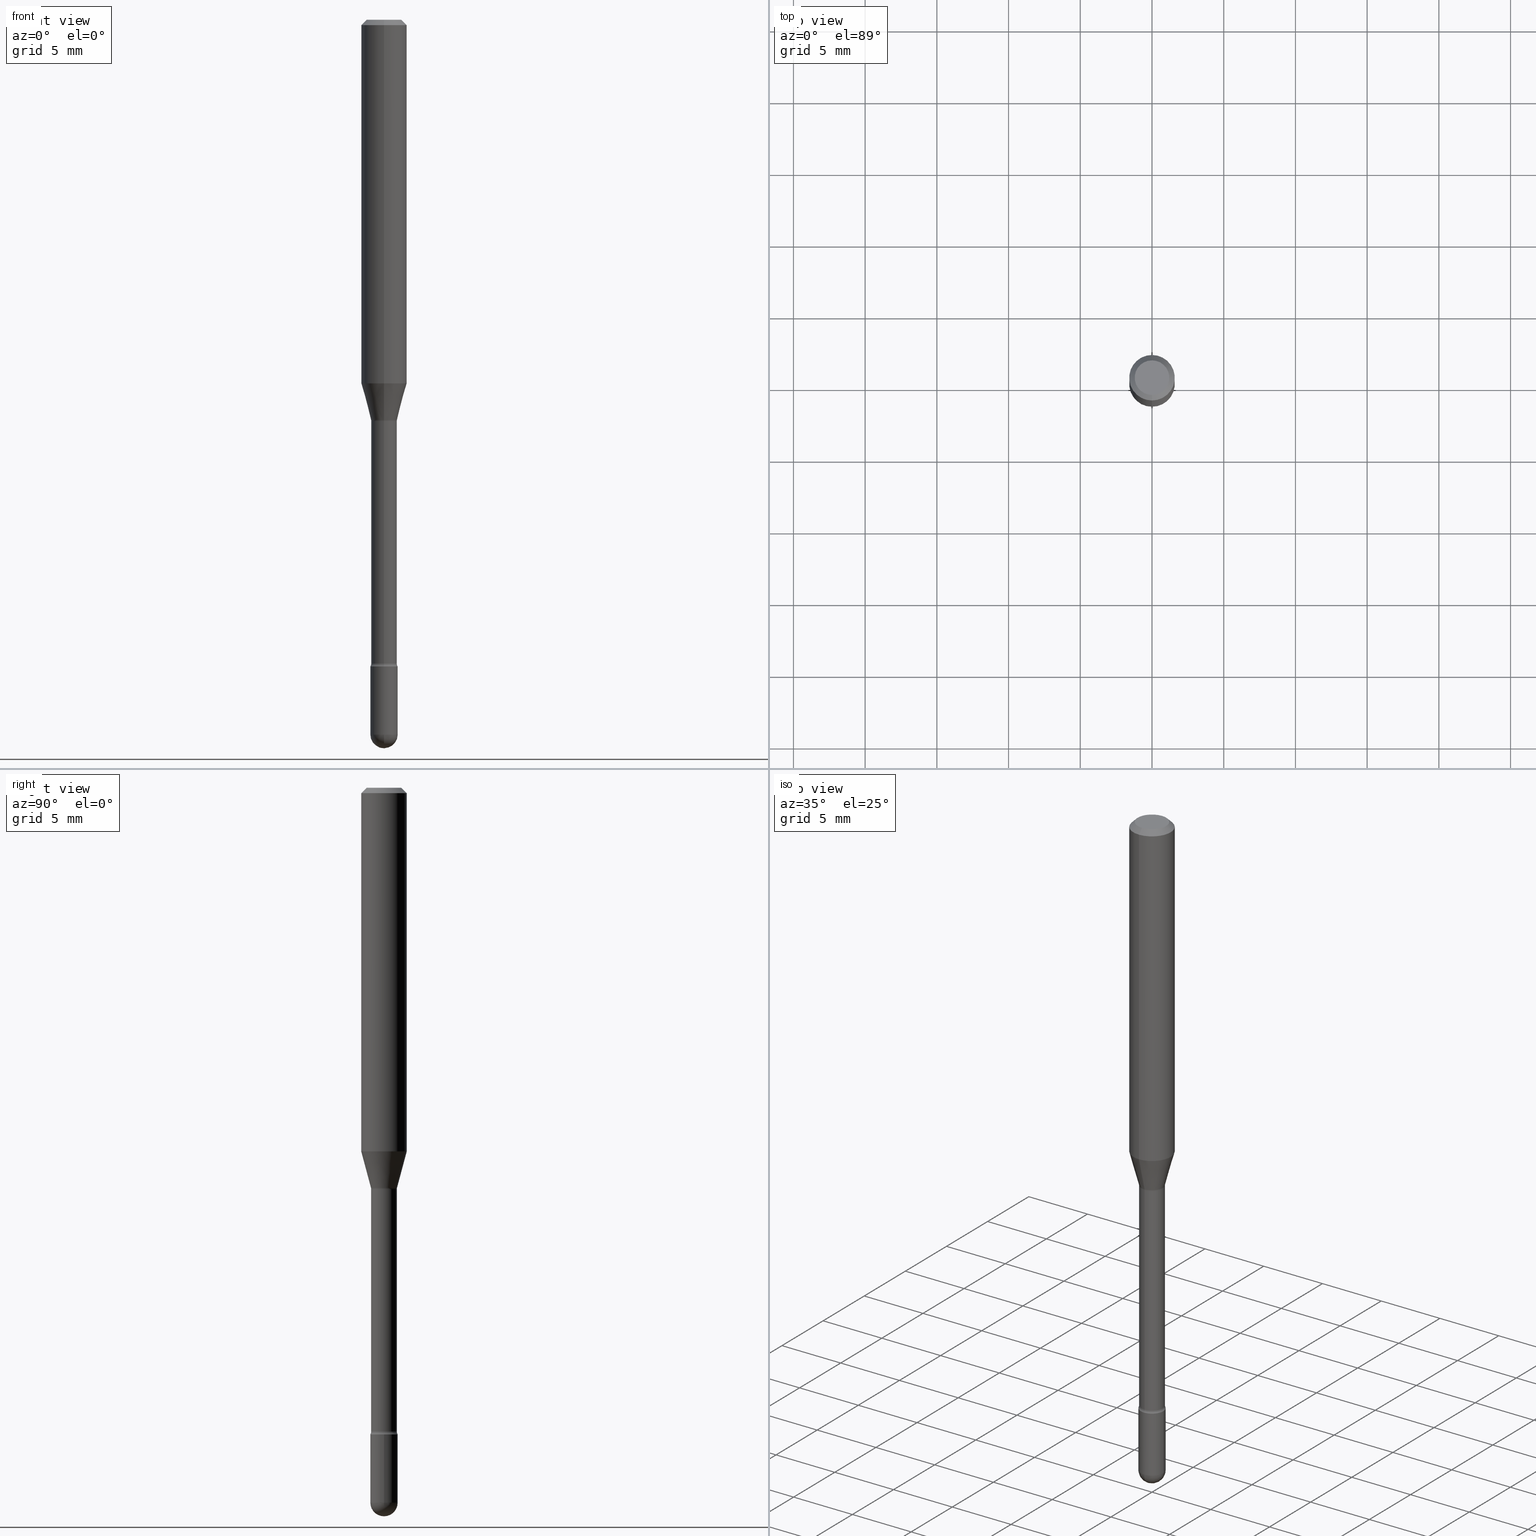
[diagram: canonical four-view strip — front | top / right | iso, engineering-drawing reading convention]
A machine part, canonical four-view strip (front | top / right | iso — engineering-drawing reading convention). The complete STEP part file that produces these views, byte-faithful:
ISO-10303-21;
HEADER;
FILE_DESCRIPTION (( 'STEP AP203' ),
    '1' );
FILE_NAME ('03740.STEP',
    '2024-04-09T20:18:31',
    ( '' ),
    ( '' ),
    'SwSTEP 2.0',
    'SolidWorks 2023',
    '' );
FILE_SCHEMA (( 'CONFIG_CONTROL_DESIGN' ));
ENDSEC;

DATA;
#1 = CALENDAR_DATE ( 2024, 9, 4 ) ;
#2 = DIRECTION ( 'NONE',  ( -2.445449487878579082E-29, 3.491509003757665551E-15, 1.000000000000000000 ) ) ;
#3 = CARTESIAN_POINT ( 'NONE',  ( 4.799232532138329338E-29, -6.852032127479672087E-15, -1.962499999999999689 ) ) ;
#4 = EDGE_CURVE ( 'NONE', #212, #491, #198, .T. ) ;
#5 = CARTESIAN_POINT ( 'NONE',  ( 2.694844967945245181E-29, -3.847524406305537036E-15, -1.101974787463810834 ) ) ;
#6 = CIRCLE ( 'NONE', #47, 0.03749999999999999861 ) ;
#7 = CONICAL_SURFACE ( 'NONE', #415, 0.03576111260566397498, 0.2617993877991499629 ) ;
#8 = DIRECTION ( 'NONE',  ( -2.445468806185136597E-29, 3.491481338843145583E-15, 1.000000000000000000 ) ) ;
#9 = ORIENTED_EDGE ( 'NONE', *, *, #286, .F. ) ;
#10 = ORIENTED_EDGE ( 'NONE', *, *, #89, .T. ) ;
#11 = DIRECTION ( 'NONE',  ( -2.445449487878579082E-29, 3.491509003757665551E-15, 1.000000000000000000 ) ) ;
#12 = CIRCLE ( 'NONE', #61, 0.03524999999999999661 ) ;
#13 = DIRECTION ( 'NONE',  ( 1.000000000000000000, -6.982962677686268288E-15, 0.000000000000000000 ) ) ;
#14 = AXIS2_PLACEMENT_3D ( 'NONE', #326, #154, #103 ) ;
#15 = DIRECTION ( 'NONE',  ( -6.982962677686265133E-15, -1.000000000000000000, 3.819579138641765120E-15 ) ) ;
#16 = CARTESIAN_POINT ( 'NONE',  ( 4.321349534178693769E-29, -6.169839484215937915E-15, -1.767098259685360606 ) ) ;
#17 = CARTESIAN_POINT ( 'NONE',  ( 2.694844967945245181E-29, -3.847524406305537036E-15, -1.101974787463810834 ) ) ;
#18 = EDGE_CURVE ( 'NONE', #374, #327, #466, .T. ) ;
#19 = VERTEX_POINT ( 'NONE', #195 ) ;
#20 = FACE_OUTER_BOUND ( 'NONE', #545, .T. ) ;
#21 = CARTESIAN_POINT ( 'NONE',  ( 0.000000000000000000, 0.000000000000000000, 0.000000000000000000 ) ) ;
#22 = EDGE_CURVE ( 'NONE', #264, #332, #346, .T. ) ;
#23 = CARTESIAN_POINT ( 'NONE',  ( 2.664535259100808486E-16, 0.03749999999999379524, -1.775000000000000133 ) ) ;
#24 = AXIS2_PLACEMENT_3D ( 'NONE', #402, #11, #188 ) ;
#25 = CARTESIAN_POINT ( 'NONE',  ( -2.497185146378605472E-16, -0.03576111260566780525, -1.098092501787272912 ) ) ;
#26 = DIRECTION ( 'NONE',  ( -4.851104656540964275E-15, -0.7071067811865500152, -0.7071067811865450192 ) ) ;
#27 = ORIENTED_EDGE ( 'NONE', *, *, #123, .F. ) ;
#28 = AXIS2_PLACEMENT_3D ( 'NONE', #231, #92, #376 ) ;
#29 = LOCAL_TIME ( 16, 18, 31.00000000000000000, #426 ) ;
#30 = EDGE_CURVE ( 'NONE', #114, #491, #12, .T. ) ;
#31 = PERSON_AND_ORGANIZATION_ROLE ( 'design_owner' ) ;
#32 = PERSON_AND_ORGANIZATION ( #78, #234 ) ;
#33 = EDGE_LOOP ( 'NONE', ( #522, #120, #362, #144, #116 ) ) ;
#34 = DIRECTION ( 'NONE',  ( -2.445468806185136597E-29, 3.491481338843145583E-15, 1.000000000000000000 ) ) ;
#35 = DIRECTION ( 'NONE',  ( -2.445449487878579082E-29, 3.491509003757665551E-15, 1.000000000000000000 ) ) ;
#36 = PERSON_AND_ORGANIZATION_ROLE ( 'classification_officer' ) ;
#37 = AXIS2_PLACEMENT_3D ( 'NONE', #291, #366, #535 ) ;
#38 = AXIS2_PLACEMENT_3D ( 'NONE', #511, #111, #65 ) ;
#39 = DATE_AND_TIME ( #1, #71 ) ;
#40 = VERTEX_POINT ( 'NONE', #142 ) ;
#41 = EDGE_CURVE ( 'NONE', #476, #553, #101, .T. ) ;
#42 = DIRECTION ( 'NONE',  ( -2.445449487878579082E-29, 3.491509003757665551E-15, 1.000000000000000000 ) ) ;
#43 = EDGE_CURVE ( 'NONE', #40, #469, #308, .T. ) ;
#44 = ORIENTED_EDGE ( 'NONE', *, *, #18, .T. ) ;
#45 = EDGE_CURVE ( 'NONE', #332, #460, #136, .T. ) ;
#46 = DIRECTION ( 'NONE',  ( 1.000000000000000000, -6.982962677686265922E-15, 4.876176775795935793E-29 ) ) ;
#47 = AXIS2_PLACEMENT_3D ( 'NONE', #520, #34, #73 ) ;
#48 = ORIENTED_EDGE ( 'NONE', *, *, #30, .F. ) ;
#49 = CARTESIAN_POINT ( 'NONE',  ( 2.618611004132830729E-16, 0.03749999999999317074, -1.962499999999999689 ) ) ;
#50 = DIRECTION ( 'NONE',  ( -6.982962677686265922E-15, -1.000000000000000000, 0.000000000000000000 ) ) ;
#51 = ORIENTED_EDGE ( 'NONE', *, *, #22, .F. ) ;
#52 = CARTESIAN_POINT ( 'NONE',  ( 3.840629472727447874E-16, 0.04749999999999999362, -2.485923956665947374E-16 ) ) ;
#53 = CC_DESIGN_SECURITY_CLASSIFICATION ( #180, ( #298 ) ) ;
#54 = EDGE_CURVE ( 'NONE', #368, #87, #81, .T. ) ;
#55 = FACE_OUTER_BOUND ( 'NONE', #336, .T. ) ;
#56 = ORIENTED_EDGE ( 'NONE', *, *, #484, .F. ) ;
#57 = DIRECTION ( 'NONE',  ( -1.000000000000000000, 6.982962677686265922E-15, -4.883557194083112901E-29 ) ) ;
#58 = ORIENTED_EDGE ( 'NONE', *, *, #501, .F. ) ;
#59 = DIRECTION ( 'NONE',  ( -1.807323732225328167E-15, -0.2588190451025179084, 0.9659258262890690894 ) ) ;
#60 = CONICAL_SURFACE ( 'NONE', #209, 0.06250000000000000000, 0.7853981633974483900 ) ;
#61 = AXIS2_PLACEMENT_3D ( 'NONE', #525, #184, #470 ) ;
#62 = CIRCLE ( 'NONE', #407, 0.03749999999999999861 ) ;
#63 = SECURITY_CLASSIFICATION_LEVEL ( 'unclassified' ) ;
#64 = LINE ( 'NONE', #515, #306 ) ;
#65 = DIRECTION ( 'NONE',  ( 1.000000000000000000, 0.000000000000000000, 0.000000000000000000 ) ) ;
#66 = DIRECTION ( 'NONE',  ( -6.982962677686265922E-15, -1.000000000000000000, 3.491509003757665551E-15 ) ) ;
#67 = ORIENTED_EDGE ( 'NONE', *, *, #18, .F. ) ;
#68 = ORIENTED_EDGE ( 'NONE', *, *, #526, .T. ) ;
#69 = APPROVAL_ROLE ( '' ) ;
#70 = CIRCLE ( 'NONE', #393, 0.06250000000000000000 ) ;
#71 = LOCAL_TIME ( 16, 18, 31.00000000000000000, #506 ) ;
#72 = DIRECTION ( 'NONE',  ( -6.982962677686265922E-15, -1.000000000000000000, 3.491509003757665551E-15 ) ) ;
#73 = DIRECTION ( 'NONE',  ( 1.000000000000000000, -6.982962677686268288E-15, 0.000000000000000000 ) ) ;
#74 = LINE ( 'NONE', #258, #324 ) ;
#75 = APPLICATION_PROTOCOL_DEFINITION ( 'international standard', 'config_control_design', 1994, #304 ) ;
#76 = ORIENTED_EDGE ( 'NONE', *, *, #98, .F. ) ;
#77 = DIRECTION ( 'NONE',  ( 1.000000000000000000, -6.982962677686268288E-15, 0.000000000000000000 ) ) ;
#78 = PERSON ( 'UNSPECIFIED', 'UNSPECIFIED', 'UNSPECIFIED', ('UNSPECIFIED'), ('UNSPECIFIED'), ('UNSPECIFIED') ) ;
#79 = CARTESIAN_POINT ( 'NONE',  ( 2.618611004132783890E-16, 0.03749999999999380218, -1.775000000000000133 ) ) ;
#80 = ADVANCED_FACE ( 'NONE', ( #358 ), #541, .T. ) ;
#81 = CIRCLE ( 'NONE', #285, 0.03750000000000004025 ) ;
#82 = TOROIDAL_SURFACE ( 'NONE', #252, 0.05025000000000007933, 0.01499999999999999077 ) ;
#83 = DIRECTION ( 'NONE',  ( -6.982962677686265922E-15, -1.000000000000000000, 4.370956789862821150E-15 ) ) ;
#84 = COORDINATED_UNIVERSAL_TIME_OFFSET ( 5, 0, .BEHIND. ) ;
#85 = ADVANCED_FACE ( 'NONE', ( #318 ), #191, .F. ) ;
#86 = ADVANCED_FACE ( 'NONE', ( #353 ), #531, .T. ) ;
#87 = VERTEX_POINT ( 'NONE', #194 ) ;
#88 = PRODUCT_DEFINITION ( 'UNKNOWN', '', #298, #299 ) ;
#89 = EDGE_CURVE ( 'NONE', #327, #114, #540, .T. ) ;
#90 = ORIENTED_EDGE ( 'NONE', *, *, #399, .F. ) ;
#91 = AXIS2_PLACEMENT_3D ( 'NONE', #140, #311, #155 ) ;
#92 = DIRECTION ( 'NONE',  ( -2.445449487878579082E-29, 3.491509003757665551E-15, 1.000000000000000000 ) ) ;
#93 = APPROVAL_PERSON_ORGANIZATION ( #174, #401, #183 ) ;
#94 = ORIENTED_EDGE ( 'NONE', *, *, #30, .T. ) ;
#95 = EDGE_CURVE ( 'NONE', #469, #19, #222, .T. ) ;
#96 = DIRECTION ( 'NONE',  ( -2.445449487878579082E-29, 3.491509003757665551E-15, 1.000000000000000000 ) ) ;
#97 = DIRECTION ( 'NONE',  ( -2.445449487878579082E-29, 3.491509003757665551E-15, 1.000000000000000000 ) ) ;
#98 = EDGE_CURVE ( 'NONE', #542, #146, #6, .T. ) ;
#99 = CARTESIAN_POINT ( 'NONE',  ( 2.504663143554787774E-16, 0.03524999999999615247, -1.101974787463810834 ) ) ;
#100 = CYLINDRICAL_SURFACE ( 'NONE', #91, 0.03749999999999999861 ) ;
#101 = CIRCLE ( 'NONE', #316, 0.04749999999999999362 ) ;
#102 = APPROVAL ( #256, 'UNSPECIFIED' ) ;
#103 = DIRECTION ( 'NONE',  ( 7.105427357600997914E-15, 1.000000000000000000, 0.000000000000000000 ) ) ;
#104 = CIRCLE ( 'NONE', #14, 0.01499999999999999424 ) ;
#105 = DIRECTION ( 'NONE',  ( 7.105427357600997914E-15, 1.000000000000000000, 0.000000000000000000 ) ) ;
#106 = CARTESIAN_POINT ( 'NONE',  ( 4.440892098500869722E-16, 0.06249999999999652361, -0.9983016154937485176 ) ) ;
#107 = EDGE_LOOP ( 'NONE', ( #90, #202, #115, #330 ) ) ;
#108 = DIRECTION ( 'NONE',  ( 1.000000000000000000, -6.982962677686268288E-15, 0.000000000000000000 ) ) ;
#109 = CARTESIAN_POINT ( 'NONE',  ( 3.570477247194771860E-16, 0.05024999999999614497, -1.101974787463811056 ) ) ;
#110 = DIRECTION ( 'NONE',  ( -2.445449487878579082E-29, 3.491509003757665551E-15, 1.000000000000000000 ) ) ;
#111 = DIRECTION ( 'NONE',  ( 0.000000000000000000, 0.000000000000000000, 1.000000000000000000 ) ) ;
#112 =( NAMED_UNIT ( * ) SI_UNIT ( $, .STERADIAN. ) SOLID_ANGLE_UNIT ( ) );
#113 = DIRECTION ( 'NONE',  ( -2.445449487878579082E-29, 3.491509003757665551E-15, 1.000000000000000000 ) ) ;
#114 = VERTEX_POINT ( 'NONE', #254 ) ;
#115 = ORIENTED_EDGE ( 'NONE', *, *, #290, .T. ) ;
#116 = ORIENTED_EDGE ( 'NONE', *, *, #98, .T. ) ;
#117 = ADVANCED_FACE ( 'NONE', ( #168 ), #219, .F. ) ;
#118 = CARTESIAN_POINT ( 'NONE',  ( 3.668174231817888906E-31, -5.237263505636527144E-17, -0.01500000000000008271 ) ) ;
#119 = MECHANICAL_CONTEXT ( 'NONE', #126, 'mechanical' ) ;
#120 = ORIENTED_EDGE ( 'NONE', *, *, #43, .T. ) ;
#121 = CC_DESIGN_PERSON_AND_ORGANIZATION_ASSIGNMENT ( #367, #555, ( #298 ) ) ;
#122 = AXIS2_PLACEMENT_3D ( 'NONE', #79, #561, #172 ) ;
#123 = EDGE_CURVE ( 'NONE', #264, #462, #463, .T. ) ;
#124 = DATE_AND_TIME ( #337, #29 ) ;
#125 = ORIENTED_EDGE ( 'NONE', *, *, #43, .F. ) ;
#126 = APPLICATION_CONTEXT ( 'configuration controlled 3d designs of mechanical parts and assemblies' ) ;
#127 = CARTESIAN_POINT ( 'NONE',  ( 3.490935988483243741E-16, 0.03576111260566013778, -1.098092501787273356 ) ) ;
#128 = CARTESIAN_POINT ( 'NONE',  ( 4.340707130978617347E-29, -6.197379376446583794E-15, -1.775000000000000133 ) ) ;
#129 = CARTESIAN_POINT ( 'NONE',  ( 2.584599201327800595E-16, 0.03524999999999392508, -1.767098259685360606 ) ) ;
#130 = ADVANCED_FACE ( 'NONE', ( #263 ), #224, .T. ) ;
#131 = CARTESIAN_POINT ( 'NONE',  ( 2.441296174357545252E-29, -3.485579078962245490E-15, -0.9983016154937482955 ) ) ;
#132 = CARTESIAN_POINT ( 'NONE',  ( -3.508938745536922406E-16, -0.05025000000000625494, -1.767098259685360384 ) ) ;
#133 = ORIENTED_EDGE ( 'NONE', *, *, #253, .T. ) ;
#134 = ORIENTED_EDGE ( 'NONE', *, *, #190, .F. ) ;
#135 = DIRECTION ( 'NONE',  ( 1.000000000000000000, -7.105427357601001070E-15, 4.926315847339572402E-29 ) ) ;
#136 = CIRCLE ( 'NONE', #24, 0.06250000000000000000 ) ;
#137 = DIRECTION ( 'NONE',  ( -6.982962677686266711E-15, -1.000000000000000000, 3.491509003757665945E-15 ) ) ;
#138 = DIRECTION ( 'NONE',  ( -2.445449487878579082E-29, 3.491509003757665551E-15, 1.000000000000000000 ) ) ;
#139 = CARTESIAN_POINT ( 'NONE',  ( -4.364351673553671654E-16, -0.06250000000000346945, -0.9983016154937480735 ) ) ;
#140 = CARTESIAN_POINT ( 'NONE',  ( 0.000000000000000000, 0.000000000000000000, 0.000000000000000000 ) ) ;
#141 = CARTESIAN_POINT ( 'NONE',  ( 3.668174231817888906E-31, -5.237263505636527144E-17, -0.01500000000000008271 ) ) ;
#142 = CARTESIAN_POINT ( 'NONE',  ( -0.03749999999999999861, -6.258252226053091317E-15, -1.962499999999999689 ) ) ;
#143 = DIRECTION ( 'NONE',  ( 2.445449487878579082E-29, -3.491509003757665551E-15, -1.000000000000000000 ) ) ;
#144 = ORIENTED_EDGE ( 'NONE', *, *, #247, .F. ) ;
#145 = ADVANCED_FACE ( 'NONE', ( #528 ), #60, .T. ) ;
#146 = VERTEX_POINT ( 'NONE', #49 ) ;
#147 = AXIS2_PLACEMENT_3D ( 'NONE', #310, #434, #395 ) ;
#148 = CIRCLE ( 'NONE', #474, 0.03525000000000008682 ) ;
#149 = AXIS2_PLACEMENT_3D ( 'NONE', #158, #503, #108 ) ;
#150 = DIRECTION ( 'NONE',  ( 4.937700262164548042E-15, 0.7071067811865451302, -0.7071067811865499042 ) ) ;
#151 = ORIENTED_EDGE ( 'NONE', *, *, #380, .F. ) ;
#152 = CARTESIAN_POINT ( 'NONE',  ( 4.440892098500871695E-16, 0.06249999999999995837, -0.01500000000000030129 ) ) ;
#153 = CARTESIAN_POINT ( 'NONE',  ( 4.321383671524591751E-29, -6.169790597593636121E-15, -1.767098259685360606 ) ) ;
#154 = DIRECTION ( 'NONE',  ( 1.000000000000000000, -7.105427357601001070E-15, 4.926315847339572402E-29 ) ) ;
#155 = DIRECTION ( 'NONE',  ( 1.000000000000000000, -6.982962677686266711E-15, 4.876176775795935793E-29 ) ) ;
#156 = CIRCLE ( 'NONE', #147, 0.03749999999999999861 ) ;
#157 = CARTESIAN_POINT ( 'NONE',  ( -1.169113584055446105E-44, 1.669184350826100908E-30, 4.780733988912460139E-16 ) ) ;
#158 = CARTESIAN_POINT ( 'NONE',  ( 4.799232532138329338E-29, -6.852032127479672087E-15, -1.962499999999999689 ) ) ;
#159 = ORIENTED_EDGE ( 'NONE', *, *, #95, .F. ) ;
#160 = DIRECTION ( 'NONE',  ( 6.982962677686265922E-15, 1.000000000000000000, -3.491509003757665551E-15 ) ) ;
#161 = DIRECTION ( 'NONE',  ( -2.445449487878579082E-29, 3.491509003757665551E-15, 1.000000000000000000 ) ) ;
#162 = CIRCLE ( 'NONE', #549, 0.03524999999999999661 ) ;
#163 = VECTOR ( 'NONE', #96, 39.37007874015748143 ) ;
#164 = ADVANCED_FACE ( 'NONE', ( #396 ), #439, .T. ) ;
#165 = COORDINATED_UNIVERSAL_TIME_OFFSET ( 5, 0, .BEHIND. ) ;
#166 = ORIENTED_EDGE ( 'NONE', *, *, #504, .T. ) ;
#167 = CC_DESIGN_PERSON_AND_ORGANIZATION_ASSIGNMENT ( #464, #169, ( #88 ) ) ;
#168 = FACE_OUTER_BOUND ( 'NONE', #489, .T. ) ;
#169 = PERSON_AND_ORGANIZATION_ROLE ( 'creator' ) ;
#170 = AXIS2_PLACEMENT_3D ( 'NONE', #131, #471, #83 ) ;
#171 = AXIS2_PLACEMENT_3D ( 'NONE', #236, #351, #200 ) ;
#172 = DIRECTION ( 'NONE',  ( -6.982962677686265922E-15, -1.000000000000000000, 3.491509003757665551E-15 ) ) ;
#173 = EDGE_LOOP ( 'NONE', ( #9, #44, #354, #347 ) ) ;
#174 = PERSON_AND_ORGANIZATION ( #78, #234 ) ;
#175 = CARTESIAN_POINT ( 'NONE',  ( 2.441296174357545252E-29, -3.485579078962245490E-15, -0.9983016154937482955 ) ) ;
#176 = DIRECTION ( 'NONE',  ( -2.445449487878579082E-29, 3.491509003757665551E-15, 1.000000000000000000 ) ) ;
#177 = CARTESIAN_POINT ( 'NONE',  ( -4.364351673553916201E-16, -0.06250000000000000000, 6.962927116261001108E-16 ) ) ;
#178 = AXIS2_PLACEMENT_3D ( 'NONE', #118, #42, #391 ) ;
#179 = UNCERTAINTY_MEASURE_WITH_UNIT (LENGTH_MEASURE( 1.000000000000000082E-05 ), #246, 'distance_accuracy_value', 'NONE');
#180 = SECURITY_CLASSIFICATION ( '', '', #63 ) ;
#181 = EDGE_LOOP ( 'NONE', ( #403, #381, #216, #220 ) ) ;
#182 = VECTOR ( 'NONE', #235, 39.37007874015748143 ) ;
#183 = APPROVAL_ROLE ( '' ) ;
#184 = DIRECTION ( 'NONE',  ( -2.445449487878579082E-29, 3.491509003757665551E-15, 1.000000000000000000 ) ) ;
#185 = ADVANCED_BREP_SHAPE_REPRESENTATION ( '03740', ( #440, #437, #38 ), #261 ) ;
#186 = CALENDAR_DATE ( 2024, 9, 4 ) ;
#187 = ORIENTED_EDGE ( 'NONE', *, *, #501, .T. ) ;
#188 = DIRECTION ( 'NONE',  ( -6.982962677686265922E-15, -1.000000000000000000, 3.483106191921935554E-15 ) ) ;
#189 = ORIENTED_EDGE ( 'NONE', *, *, #247, .T. ) ;
#190 = EDGE_CURVE ( 'NONE', #327, #374, #382, .T. ) ;
#191 = TOROIDAL_SURFACE ( 'NONE', #315, 0.05024999999999999606, 0.01499999999999999077 ) ;
#192 = CC_DESIGN_APPROVAL ( #425, ( #298 ) ) ;
#193 = FACE_OUTER_BOUND ( 'NONE', #313, .T. ) ;
#194 = CARTESIAN_POINT ( 'NONE',  ( -2.664535259099897351E-16, -0.03750000000000687506, -1.962499999999999689 ) ) ;
#195 = CARTESIAN_POINT ( 'NONE',  ( 0.03749999999999999861, -6.459240476859818795E-15, -1.775000000000000133 ) ) ;
#196 = PLANE ( 'NONE',  #488 ) ;
#197 = DIRECTION ( 'NONE',  ( -2.445449487878579082E-29, 3.491509003757665551E-15, 1.000000000000000000 ) ) ;
#198 = LINE ( 'NONE', #502, #182 ) ;
#199 = CARTESIAN_POINT ( 'NONE',  ( 3.316907271900976096E-16, 0.04749999999999999362, 3.181716277308108070E-17 ) ) ;
#200 = DIRECTION ( 'NONE',  ( -6.982962677686266711E-15, -1.000000000000000000, 3.491509003757667523E-15 ) ) ;
#201 = CONICAL_SURFACE ( 'NONE', #345, 0.06250000000000000000, 0.7853981633974483900 ) ;
#202 = ORIENTED_EDGE ( 'NONE', *, *, #526, .F. ) ;
#203 = DIRECTION ( 'NONE',  ( 1.000000000000000000, -6.982962677686268288E-15, 0.000000000000000000 ) ) ;
#204 = EDGE_CURVE ( 'NONE', #368, #146, #344, .T. ) ;
#205 = ORIENTED_EDGE ( 'NONE', *, *, #204, .F. ) ;
#206 = PERSON_AND_ORGANIZATION ( #78, #234 ) ;
#207 = EDGE_CURVE ( 'NONE', #491, #114, #162, .T. ) ;
#208 = APPROVAL_DATE_TIME ( #419, #102 ) ;
#209 = AXIS2_PLACEMENT_3D ( 'NONE', #141, #143, #268 ) ;
#210 = ORIENTED_EDGE ( 'NONE', *, *, #45, .F. ) ;
#211 = LENGTH_MEASURE_WITH_UNIT ( LENGTH_MEASURE( 0.02539999999999999897 ), #461 );
#212 = VERTEX_POINT ( 'NONE', #129 ) ;
#213 = PRODUCT ( '03740', '03740', '', ( #119 ) ) ;
#214 = LINE ( 'NONE', #377, #507 ) ;
#215 = DIRECTION ( 'NONE',  ( -6.982962677686266711E-15, -1.000000000000000000, 0.000000000000000000 ) ) ;
#216 = ORIENTED_EDGE ( 'NONE', *, *, #430, .T. ) ;
#217 = ORIENTED_EDGE ( 'NONE', *, *, #207, .F. ) ;
#218 = ORIENTED_EDGE ( 'NONE', *, *, #226, .F. ) ;
#219 = PLANE ( 'NONE',  #122 ) ;
#220 = ORIENTED_EDGE ( 'NONE', *, *, #290, .F. ) ;
#221 = DIRECTION ( 'NONE',  ( -1.000000000000000000, 6.982962677686265922E-15, -4.883557194083112340E-29 ) ) ;
#222 = CIRCLE ( 'NONE', #278, 0.03749999999999999861 ) ;
#223 = DIRECTION ( 'NONE',  ( -6.982962677686262766E-15, -1.000000000000000000, 0.000000000000000000 ) ) ;
#224 = CYLINDRICAL_SURFACE ( 'NONE', #260, 0.03525000000000003825 ) ;
#225 = DATE_AND_TIME ( #186, #394 ) ;
#226 = EDGE_CURVE ( 'NONE', #460, #332, #422, .T. ) ;
#227 = CARTESIAN_POINT ( 'NONE',  ( 4.340707130978617347E-29, -6.197379376446583794E-15, -1.775000000000000133 ) ) ;
#228 = CIRCLE ( 'NONE', #356, 0.01499999999999999424 ) ;
#229 = EDGE_CURVE ( 'NONE', #146, #40, #338, .T. ) ;
#230 = AXIS2_PLACEMENT_3D ( 'NONE', #413, #408, #203 ) ;
#231 = CARTESIAN_POINT ( 'NONE',  ( 2.685329746138994444E-29, -3.833999856949044561E-15, -1.098092501787273134 ) ) ;
#232 = SHAPE_DEFINITION_REPRESENTATION ( #537, #185 ) ;
#233 = FACE_OUTER_BOUND ( 'NONE', #333, .T. ) ;
#234 = ORGANIZATION ( 'UNSPECIFIED', 'UNSPECIFIED', '' ) ;
#235 = DIRECTION ( 'NONE',  ( -2.445449487878579082E-29, 3.491509003757665551E-15, 1.000000000000000000 ) ) ;
#236 = CARTESIAN_POINT ( 'NONE',  ( -1.169113584055446105E-44, 1.669184350826100908E-30, 4.780733988912460139E-16 ) ) ;
#237 = DIMENSIONAL_EXPONENTS ( 1.000000000000000000, 0.000000000000000000, 0.000000000000000000, 0.000000000000000000, 0.000000000000000000, 0.000000000000000000, 0.000000000000000000 ) ;
#238 = CARTESIAN_POINT ( 'NONE',  ( 4.799232532138329899E-29, -6.852032127479672876E-15, -1.962499999999999911 ) ) ;
#239 = ORIENTED_EDGE ( 'NONE', *, *, #546, .T. ) ;
#240 = ADVANCED_FACE ( 'NONE', ( #559 ), #250, .F. ) ;
#241 = LINE ( 'NONE', #25, #383 ) ;
#242 = EDGE_LOOP ( 'NONE', ( #125, #187, #273, #189, #159 ) ) ;
#243 = AXIS2_PLACEMENT_3D ( 'NONE', #468, #457, #277 ) ;
#244 = CARTESIAN_POINT ( 'NONE',  ( 4.321349534178693769E-29, -6.169839484215937915E-15, -1.767098259685360606 ) ) ;
#245 = AXIS2_PLACEMENT_3D ( 'NONE', #157, #355, #320 ) ;
#246 =( CONVERSION_BASED_UNIT ( 'INCH', #211 ) LENGTH_UNIT ( ) NAMED_UNIT ( #237 ) );
#247 = EDGE_CURVE ( 'NONE', #542, #19, #64, .T. ) ;
#248 = EDGE_CURVE ( 'NONE', #462, #460, #74, .T. ) ;
#249 = DATE_AND_TIME ( #289, #424 ) ;
#250 = TOROIDAL_SURFACE ( 'NONE', #349, 0.05024999999999999606, 0.01499999999999999077 ) ;
#251 = ORIENTED_EDGE ( 'NONE', *, *, #248, .F. ) ;
#252 = AXIS2_PLACEMENT_3D ( 'NONE', #303, #138, #547 ) ;
#253 = EDGE_CURVE ( 'NONE', #462, #264, #70, .T. ) ;
#254 = CARTESIAN_POINT ( 'NONE',  ( -2.461494343884138594E-16, -0.03525000000000384076, -1.101974787463810612 ) ) ;
#255 = DIRECTION ( 'NONE',  ( -2.445449487878579082E-29, 3.491509003757665551E-15, 1.000000000000000000 ) ) ;
#256 = APPROVAL_STATUS ( 'not_yet_approved' ) ;
#257 = ORIENTED_EDGE ( 'NONE', *, *, #41, .T. ) ;
#258 = CARTESIAN_POINT ( 'NONE',  ( 4.440892098500625669E-16, 0.06250000000000000000, 2.598540861563919663E-16 ) ) ;
#259 = PERSON_AND_ORGANIZATION ( #78, #234 ) ;
#260 = AXIS2_PLACEMENT_3D ( 'NONE', #389, #176, #478 ) ;
#261 =( GEOMETRIC_REPRESENTATION_CONTEXT ( 3 ) GLOBAL_UNCERTAINTY_ASSIGNED_CONTEXT ( ( #179 ) ) GLOBAL_UNIT_ASSIGNED_CONTEXT ( ( #246, #563, #112 ) ) REPRESENTATION_CONTEXT ( 'NONE', 'WORKASPACE' ) );
#262 = DIRECTION ( 'NONE',  ( -1.000000000000000000, 6.982962677686265922E-15, -4.883557194083112340E-29 ) ) ;
#263 = FACE_OUTER_BOUND ( 'NONE', #270, .T. ) ;
#264 = VERTEX_POINT ( 'NONE', #139 ) ;
#265 = EDGE_CURVE ( 'NONE', #275, #481, #156, .T. ) ;
#266 = APPROVAL_DATE_TIME ( #225, #401 ) ;
#267 = ADVANCED_FACE ( 'NONE', ( #271 ), #100, .T. ) ;
#268 = DIRECTION ( 'NONE',  ( 6.982962677686265922E-15, 1.000000000000000000, -3.483106191921935554E-15 ) ) ;
#269 = ORIENTED_EDGE ( 'NONE', *, *, #388, .T. ) ;
#270 = EDGE_LOOP ( 'NONE', ( #305, #239, #296, #217 ) ) ;
#271 = FACE_OUTER_BOUND ( 'NONE', #242, .T. ) ;
#272 = VECTOR ( 'NONE', #2, 39.37007874015748143 ) ;
#273 = ORIENTED_EDGE ( 'NONE', *, *, #539, .T. ) ;
#274 = FACE_OUTER_BOUND ( 'NONE', #556, .T. ) ;
#275 = VERTEX_POINT ( 'NONE', #323 ) ;
#276 = CARTESIAN_POINT ( 'NONE',  ( -0.03749999999999999861, -6.258252226053091317E-15, -1.775000000000000133 ) ) ;
#277 = DIRECTION ( 'NONE',  ( -6.982962677686266711E-15, -1.000000000000000000, 3.491509003757665945E-15 ) ) ;
#278 = AXIS2_PLACEMENT_3D ( 'NONE', #128, #566, #370 ) ;
#279 = CC_DESIGN_APPROVAL ( #102, ( #88 ) ) ;
#280 = DIRECTION ( 'NONE',  ( 2.445449487878579082E-29, -3.491509003757665551E-15, -1.000000000000000000 ) ) ;
#281 = CARTESIAN_POINT ( 'NONE',  ( 2.540979878465616281E-16, 0.03576111260566013778, -1.098092501787273356 ) ) ;
#282 = DIRECTION ( 'NONE',  ( -7.105427357601000281E-15, -1.000000000000000000, 0.000000000000000000 ) ) ;
#283 = SPHERICAL_SURFACE ( 'NONE', #562, 0.03750000000000004025 ) ;
#284 = CARTESIAN_POINT ( 'NONE',  ( -2.461494343884411737E-16, -0.03525000000000003825, 6.011490912737039707E-16 ) ) ;
#285 = AXIS2_PLACEMENT_3D ( 'NONE', #348, #494, #282 ) ;
#286 = EDGE_CURVE ( 'NONE', #374, #462, #497, .T. ) ;
#287 = CIRCLE ( 'NONE', #149, 0.03749999999999999861 ) ;
#288 = APPLICATION_PROTOCOL_DEFINITION ( 'international standard', 'config_control_design', 1994, #126 ) ;
#289 = CALENDAR_DATE ( 2024, 9, 4 ) ;
#290 = EDGE_CURVE ( 'NONE', #519, #275, #228, .T. ) ;
#291 = CARTESIAN_POINT ( 'NONE',  ( 4.799232532138329899E-29, -6.852032127479672876E-15, -1.962499999999999911 ) ) ;
#292 = PERSON_AND_ORGANIZATION ( #78, #234 ) ;
#293 = ORIENTED_EDGE ( 'NONE', *, *, #430, .F. ) ;
#294 = DIRECTION ( 'NONE',  ( -2.445468806185136877E-29, 3.491481338843145188E-15, 1.000000000000000000 ) ) ;
#295 = CALENDAR_DATE ( 2024, 9, 4 ) ;
#296 = ORIENTED_EDGE ( 'NONE', *, *, #495, .T. ) ;
#297 = AXIS2_PLACEMENT_3D ( 'NONE', #534, #262, #223 ) ;
#298 = PRODUCT_DEFINITION_FORMATION_WITH_SPECIFIED_SOURCE ( 'ANY', '', #213, .NOT_KNOWN. ) ;
#299 = DESIGN_CONTEXT ( 'detailed design', #304, 'design' ) ;
#300 = PERSON_AND_ORGANIZATION_ROLE ( 'design_supplier' ) ;
#301 = ORIENTED_EDGE ( 'NONE', *, *, #495, .F. ) ;
#302 = DIRECTION ( 'NONE',  ( -6.982962677686262766E-15, -1.000000000000000000, 0.000000000000000000 ) ) ;
#303 = CARTESIAN_POINT ( 'NONE',  ( 4.321383671524591751E-29, -6.169790597593636121E-15, -1.767098259685360606 ) ) ;
#304 = APPLICATION_CONTEXT ( 'configuration controlled 3d designs of mechanical parts and assemblies' ) ;
#305 = ORIENTED_EDGE ( 'NONE', *, *, #4, .F. ) ;
#306 = VECTOR ( 'NONE', #294, 39.37007874015748143 ) ;
#307 = AXIS2_PLACEMENT_3D ( 'NONE', #16, #411, #543 ) ;
#308 = LINE ( 'NONE', #436, #365 ) ;
#309 = EDGE_LOOP ( 'NONE', ( #67, #269, #433, #441 ) ) ;
#310 = CARTESIAN_POINT ( 'NONE',  ( 4.340672840984477919E-29, -6.197428481669857299E-15, -1.775000000000000133 ) ) ;
#311 = DIRECTION ( 'NONE',  ( -2.445468806185136597E-29, 3.491481338843145583E-15, 1.000000000000000000 ) ) ;
#312 = ORIENTED_EDGE ( 'NONE', *, *, #41, .F. ) ;
#313 = EDGE_LOOP ( 'NONE', ( #205, #505, #58, #360 ) ) ;
#314 = EDGE_LOOP ( 'NONE', ( #475, #398, #210, #51 ) ) ;
#315 = AXIS2_PLACEMENT_3D ( 'NONE', #17, #197, #319 ) ;
#316 = AXIS2_PLACEMENT_3D ( 'NONE', #342, #473, #137 ) ;
#317 = CIRCLE ( 'NONE', #508, 0.01499999999999999424 ) ;
#318 = FACE_OUTER_BOUND ( 'NONE', #309, .T. ) ;
#319 = DIRECTION ( 'NONE',  ( -6.982962677686265922E-15, -1.000000000000000000, 3.491509003757665945E-15 ) ) ;
#320 = DIRECTION ( 'NONE',  ( -6.982962677686265922E-15, -1.000000000000000000, 3.491509003757665551E-15 ) ) ;
#321 = DIRECTION ( 'NONE',  ( -2.445449487878579082E-29, 3.491509003757665551E-15, 1.000000000000000000 ) ) ;
#322 = DIRECTION ( 'NONE',  ( 6.982962677686265922E-15, 1.000000000000000000, 0.000000000000000000 ) ) ;
#323 = CARTESIAN_POINT ( 'NONE',  ( -2.618611004131915157E-16, -0.03750000000000618811, -1.775000000000000133 ) ) ;
#324 = VECTOR ( 'NONE', #255, 39.37007874015748143 ) ;
#325 = APPROVAL_PERSON_ORGANIZATION ( #206, #102, #379 ) ;
#326 = CARTESIAN_POINT ( 'NONE',  ( 3.570477247194940479E-16, 0.05024999999999391065, -1.767098259685361050 ) ) ;
#327 = VERTEX_POINT ( 'NONE', #431 ) ;
#328 = DIRECTION ( 'NONE',  ( 2.445449487878578801E-29, -3.491509003757665551E-15, -1.000000000000000000 ) ) ;
#329 = AXIS2_PLACEMENT_3D ( 'NONE', #533, #97, #15 ) ;
#330 = ORIENTED_EDGE ( 'NONE', *, *, #265, .T. ) ;
#331 = FACE_OUTER_BOUND ( 'NONE', #529, .T. ) ;
#332 = VERTEX_POINT ( 'NONE', #564 ) ;
#333 = EDGE_LOOP ( 'NONE', ( #257, #565 ) ) ;
#334 = ADVANCED_FACE ( 'NONE', ( #384 ), #427, .T. ) ;
#335 = EDGE_CURVE ( 'NONE', #553, #476, #516, .T. ) ;
#336 = EDGE_LOOP ( 'NONE', ( #68, #420, #48, #301 ) ) ;
#337 = CALENDAR_DATE ( 2024, 9, 4 ) ;
#338 = CIRCLE ( 'NONE', #496, 0.03749999999999999861 ) ;
#339 = AXIS2_PLACEMENT_3D ( 'NONE', #238, #499, #322 ) ;
#340 = ORIENTED_EDGE ( 'NONE', *, *, #388, .F. ) ;
#341 = ADVANCED_FACE ( 'NONE', ( #409 ), #560, .F. ) ;
#342 = CARTESIAN_POINT ( 'NONE',  ( 2.023412381096814937E-45, -2.889206452375782179E-31, -8.274571798810565925E-17 ) ) ;
#343 = ORIENTED_EDGE ( 'NONE', *, *, #265, .F. ) ;
#344 = CIRCLE ( 'NONE', #37, 0.03750000000000004025 ) ;
#345 = AXIS2_PLACEMENT_3D ( 'NONE', #443, #280, #359 ) ;
#346 = LINE ( 'NONE', #177, #272 ) ;
#347 = ORIENTED_EDGE ( 'NONE', *, *, #253, .F. ) ;
#348 = CARTESIAN_POINT ( 'NONE',  ( 4.799232532138329899E-29, -6.852032127479672876E-15, -1.962499999999999911 ) ) ;
#349 = AXIS2_PLACEMENT_3D ( 'NONE', #5, #456, #372 ) ;
#350 = CC_DESIGN_APPROVAL ( #401, ( #180 ) ) ;
#351 = DIRECTION ( 'NONE',  ( -2.445449487878579082E-29, 3.491509003757665551E-15, 1.000000000000000000 ) ) ;
#352 = CYLINDRICAL_SURFACE ( 'NONE', #171, 0.03525000000000003825 ) ;
#353 = FACE_OUTER_BOUND ( 'NONE', #173, .T. ) ;
#354 = ORIENTED_EDGE ( 'NONE', *, *, #484, .T. ) ;
#355 = DIRECTION ( 'NONE',  ( -2.445449487878579082E-29, 3.491509003757665551E-15, 1.000000000000000000 ) ) ;
#356 = AXIS2_PLACEMENT_3D ( 'NONE', #132, #221, #302 ) ;
#357 = CIRCLE ( 'NONE', #498, 0.03749999999999999861 ) ;
#358 = FACE_OUTER_BOUND ( 'NONE', #33, .T. ) ;
#359 = DIRECTION ( 'NONE',  ( 6.982962677686265922E-15, 1.000000000000000000, -3.483106191921935554E-15 ) ) ;
#360 = ORIENTED_EDGE ( 'NONE', *, *, #229, .F. ) ;
#361 = CARTESIAN_POINT ( 'NONE',  ( 4.340672840984477919E-29, -6.197428481669857299E-15, -1.775000000000000133 ) ) ;
#362 = ORIENTED_EDGE ( 'NONE', *, *, #504, .F. ) ;
#363 = APPROVAL_DATE_TIME ( #249, #425 ) ;
#364 = EDGE_CURVE ( 'NONE', #553, #332, #454, .T. ) ;
#365 = VECTOR ( 'NONE', #479, 39.37007874015748143 ) ;
#366 = DIRECTION ( 'NONE',  ( 1.000000000000000000, -6.982962677686265922E-15, 4.883557194083112340E-29 ) ) ;
#367 = PERSON_AND_ORGANIZATION ( #78, #234 ) ;
#368 = VERTEX_POINT ( 'NONE', #509 ) ;
#369 = EDGE_LOOP ( 'NONE', ( #340, #134, #10, #94 ) ) ;
#370 = DIRECTION ( 'NONE',  ( 1.000000000000000000, -6.982962677686268288E-15, 0.000000000000000000 ) ) ;
#371 = DIRECTION ( 'NONE',  ( -6.982962677686265133E-15, -1.000000000000000000, 3.874961693140799059E-15 ) ) ;
#372 = DIRECTION ( 'NONE',  ( -6.982962677686265922E-15, -1.000000000000000000, 3.491509003757665945E-15 ) ) ;
#373 = APPROVAL_STATUS ( 'not_yet_approved' ) ;
#374 = VERTEX_POINT ( 'NONE', #127 ) ;
#375 = CARTESIAN_POINT ( 'NONE',  ( -4.287811248607203282E-16, -0.06250000000000005551, -0.01499999999999986587 ) ) ;
#376 = DIRECTION ( 'NONE',  ( -6.982962677686265133E-15, -1.000000000000000000, 3.819579138641765120E-15 ) ) ;
#377 = CARTESIAN_POINT ( 'NONE',  ( 4.364351673553919652E-16, 0.06249999999999995143, -0.01500000000000030129 ) ) ;
#378 = CC_DESIGN_PERSON_AND_ORGANIZATION_ASSIGNMENT ( #259, #36, ( #180 ) ) ;
#379 = APPROVAL_ROLE ( '' ) ;
#380 = EDGE_CURVE ( 'NONE', #476, #460, #214, .T. ) ;
#381 = ORIENTED_EDGE ( 'NONE', *, *, #399, .T. ) ;
#382 = CIRCLE ( 'NONE', #28, 0.03576111260566397498 ) ;
#383 = VECTOR ( 'NONE', #59, 39.37007874015748143 ) ;
#384 = FACE_OUTER_BOUND ( 'NONE', #314, .T. ) ;
#385 = CIRCLE ( 'NONE', #307, 0.03525000000000008682 ) ;
#386 = ADVANCED_FACE ( 'NONE', ( #442 ), #82, .F. ) ;
#387 = ORIENTED_EDGE ( 'NONE', *, *, #539, .F. ) ;
#388 = EDGE_CURVE ( 'NONE', #374, #491, #317, .T. ) ;
#389 = CARTESIAN_POINT ( 'NONE',  ( -1.169113584055446105E-44, 1.669184350826100908E-30, 4.780733988912460139E-16 ) ) ;
#390 = DATE_TIME_ROLE ( 'classification_date' ) ;
#391 = DIRECTION ( 'NONE',  ( -6.982962677686265922E-15, -1.000000000000000000, 3.483106191921935554E-15 ) ) ;
#392 = ADVANCED_FACE ( 'NONE', ( #472 ), #538, .T. ) ;
#393 = AXIS2_PLACEMENT_3D ( 'NONE', #175, #483, #432 ) ;
#394 = LOCAL_TIME ( 16, 18, 31.00000000000000000, #84 ) ;
#395 = DIRECTION ( 'NONE',  ( -6.982962677686265922E-15, -1.000000000000000000, 0.000000000000000000 ) ) ;
#396 = FACE_OUTER_BOUND ( 'NONE', #459, .T. ) ;
#397 = ORIENTED_EDGE ( 'NONE', *, *, #45, .T. ) ;
#398 = ORIENTED_EDGE ( 'NONE', *, *, #248, .T. ) ;
#399 = EDGE_CURVE ( 'NONE', #212, #481, #104, .T. ) ;
#400 = ORIENTED_EDGE ( 'NONE', *, *, #226, .T. ) ;
#401 = APPROVAL ( #524, 'UNSPECIFIED' ) ;
#402 = CARTESIAN_POINT ( 'NONE',  ( 3.668174231817888906E-31, -5.237263505636527144E-17, -0.01500000000000008271 ) ) ;
#403 = ORIENTED_EDGE ( 'NONE', *, *, #546, .F. ) ;
#404 = ORIENTED_EDGE ( 'NONE', *, *, #286, .T. ) ;
#405 = DIRECTION ( 'NONE',  ( -2.445468806185136597E-29, 3.491481338843145583E-15, 1.000000000000000000 ) ) ;
#406 = AXIS2_PLACEMENT_3D ( 'NONE', #451, #110, #444 ) ;
#407 = AXIS2_PLACEMENT_3D ( 'NONE', #361, #490, #50 ) ;
#408 = DIRECTION ( 'NONE',  ( -2.445468806185136597E-29, 3.491481338843145583E-15, 1.000000000000000000 ) ) ;
#409 = FACE_OUTER_BOUND ( 'NONE', #107, .T. ) ;
#410 = CC_DESIGN_PERSON_AND_ORGANIZATION_ASSIGNMENT ( #292, #31, ( #213 ) ) ;
#411 = DIRECTION ( 'NONE',  ( -2.445449487878579082E-29, 3.491509003757665551E-15, 1.000000000000000000 ) ) ;
#412 = DIRECTION ( 'NONE',  ( 1.000000000000000000, -6.982962677686266711E-15, 4.876176775795935793E-29 ) ) ;
#413 = CARTESIAN_POINT ( 'NONE',  ( 4.799232532138329338E-29, -6.852032127479672087E-15, -1.962499999999999689 ) ) ;
#414 = AXIS2_PLACEMENT_3D ( 'NONE', #21, #530, #412 ) ;
#415 = AXIS2_PLACEMENT_3D ( 'NONE', #513, #161, #552 ) ;
#416 = DIRECTION ( 'NONE',  ( -2.445449487878579082E-29, 3.491509003757665551E-15, 1.000000000000000000 ) ) ;
#417 = ORIENTED_EDGE ( 'NONE', *, *, #380, .T. ) ;
#418 = CC_DESIGN_DATE_AND_TIME_ASSIGNMENT ( #39, #390, ( #180 ) ) ;
#419 = DATE_AND_TIME ( #295, #550 ) ;
#420 = ORIENTED_EDGE ( 'NONE', *, *, #4, .T. ) ;
#421 = ADVANCED_FACE ( 'NONE', ( #274 ), #201, .T. ) ;
#422 = CIRCLE ( 'NONE', #178, 0.06250000000000000000 ) ;
#423 = ORIENTED_EDGE ( 'NONE', *, *, #364, .F. ) ;
#424 = LOCAL_TIME ( 16, 18, 31.00000000000000000, #548 ) ;
#425 = APPROVAL ( #373, 'UNSPECIFIED' ) ;
#426 = COORDINATED_UNIVERSAL_TIME_OFFSET ( 5, 0, .BEHIND. ) ;
#427 = CYLINDRICAL_SURFACE ( 'NONE', #487, 0.06250000000000000000 ) ;
#428 = ORIENTED_EDGE ( 'NONE', *, *, #54, .F. ) ;
#429 = VECTOR ( 'NONE', #26, 39.37007874015748143 ) ;
#430 = EDGE_CURVE ( 'NONE', #481, #275, #62, .T. ) ;
#431 = CARTESIAN_POINT ( 'NONE',  ( -2.497185146378605472E-16, -0.03576111260566780525, -1.098092501787272912 ) ) ;
#432 = DIRECTION ( 'NONE',  ( -6.982962677686265922E-15, -1.000000000000000000, 4.370956789862821150E-15 ) ) ;
#433 = ORIENTED_EDGE ( 'NONE', *, *, #207, .T. ) ;
#434 = DIRECTION ( 'NONE',  ( -2.445449487878579082E-29, 3.491509003757665551E-15, 1.000000000000000000 ) ) ;
#435 = DIRECTION ( 'NONE',  ( -2.438088387897960049E-29, 3.491481338843145188E-15, 1.000000000000000000 ) ) ;
#436 = CARTESIAN_POINT ( 'NONE',  ( -0.03749999999999999861, 2.664535259100375598E-16, -1.844600658845589808E-30 ) ) ;
#437 = MANIFOLD_SOLID_BREP ( 'Body-Move/Copy2[2]', #551 ) ;
#438 = VECTOR ( 'NONE', #521, 39.37007874015748854 ) ;
#439 = PLANE ( 'NONE',  #523 ) ;
#440 = MANIFOLD_SOLID_BREP ( 'Body-Move/Copy2[1]', #485 ) ;
#441 = ORIENTED_EDGE ( 'NONE', *, *, #89, .F. ) ;
#442 = FACE_OUTER_BOUND ( 'NONE', #181, .T. ) ;
#443 = CARTESIAN_POINT ( 'NONE',  ( 3.668174231817888906E-31, -5.237263505636527144E-17, -0.01500000000000008271 ) ) ;
#444 = DIRECTION ( 'NONE',  ( -6.982962677686265133E-15, -1.000000000000000000, 3.819579138641765120E-15 ) ) ;
#445 = ADVANCED_FACE ( 'NONE', ( #20 ), #544, .T. ) ;
#446 = CARTESIAN_POINT ( 'NONE',  ( -2.461494343883982794E-16, -0.03525000000000625550, -1.767098259685360606 ) ) ;
#447 = LINE ( 'NONE', #284, #163 ) ;
#448 = CARTESIAN_POINT ( 'NONE',  ( 2.694823679658482289E-29, -3.847554892343835793E-15, -1.101974787463810834 ) ) ;
#449 = CARTESIAN_POINT ( 'NONE',  ( 4.799232532138329899E-29, -6.852032127479672876E-15, -1.962499999999999911 ) ) ;
#450 = ORIENTED_EDGE ( 'NONE', *, *, #22, .T. ) ;
#451 = CARTESIAN_POINT ( 'NONE',  ( 2.685329746138994444E-29, -3.833999856949044561E-15, -1.098092501787273134 ) ) ;
#452 = CARTESIAN_POINT ( 'NONE',  ( 0.03749999999999999861, -6.786566852376363731E-15, -1.962499999999999689 ) ) ;
#453 = AXIS2_PLACEMENT_3D ( 'NONE', #153, #321, #72 ) ;
#454 = LINE ( 'NONE', #375, #429 ) ;
#455 = CARTESIAN_POINT ( 'NONE',  ( -3.773273898774340269E-16, -0.04749999999999999362, 8.310095969038343123E-17 ) ) ;
#456 = DIRECTION ( 'NONE',  ( -2.445449487878579082E-29, 3.491509003757665551E-15, 1.000000000000000000 ) ) ;
#457 = DIRECTION ( 'NONE',  ( -2.445449487878579082E-29, 3.491509003757665551E-15, 1.000000000000000000 ) ) ;
#458 = ADVANCED_FACE ( 'NONE', ( #233 ), #196, .F. ) ;
#459 = EDGE_LOOP ( 'NONE', ( #166, #486 ) ) ;
#460 = VERTEX_POINT ( 'NONE', #152 ) ;
#461 =( LENGTH_UNIT ( ) NAMED_UNIT ( * ) SI_UNIT ( $, .METRE. ) );
#462 = VERTEX_POINT ( 'NONE', #106 ) ;
#463 = CIRCLE ( 'NONE', #170, 0.06250000000000000000 ) ;
#464 = PERSON_AND_ORGANIZATION ( #78, #234 ) ;
#465 = ORIENTED_EDGE ( 'NONE', *, *, #204, .T. ) ;
#466 = CIRCLE ( 'NONE', #406, 0.03576111260566397498 ) ;
#467 = ORIENTED_EDGE ( 'NONE', *, *, #335, .F. ) ;
#468 = CARTESIAN_POINT ( 'NONE',  ( 2.023412381096814937E-45, -2.889206452375782179E-31, -8.274571798810565925E-17 ) ) ;
#469 = VERTEX_POINT ( 'NONE', #276 ) ;
#470 = DIRECTION ( 'NONE',  ( -6.982962677686265133E-15, -1.000000000000000000, 3.874961693140799059E-15 ) ) ;
#471 = DIRECTION ( 'NONE',  ( -2.445449487878579082E-29, 3.491509003757665551E-15, 1.000000000000000000 ) ) ;
#472 = FACE_OUTER_BOUND ( 'NONE', #480, .T. ) ;
#473 = DIRECTION ( 'NONE',  ( -2.445449487878579082E-29, 3.491509003757665551E-15, 1.000000000000000000 ) ) ;
#474 = AXIS2_PLACEMENT_3D ( 'NONE', #244, #416, #215 ) ;
#475 = ORIENTED_EDGE ( 'NONE', *, *, #123, .T. ) ;
#476 = VERTEX_POINT ( 'NONE', #52 ) ;
#477 = ADVANCED_FACE ( 'NONE', ( #193 ), #283, .T. ) ;
#478 = DIRECTION ( 'NONE',  ( -6.982962677686266711E-15, -1.000000000000000000, 3.491509003757667523E-15 ) ) ;
#479 = DIRECTION ( 'NONE',  ( -2.445468806185136877E-29, 3.491481338843145188E-15, 1.000000000000000000 ) ) ;
#480 = EDGE_LOOP ( 'NONE', ( #251, #133, #450, #218 ) ) ;
#481 = VERTEX_POINT ( 'NONE', #23 ) ;
#482 = CC_DESIGN_PERSON_AND_ORGANIZATION_ASSIGNMENT ( #518, #300, ( #298 ) ) ;
#483 = DIRECTION ( 'NONE',  ( -2.445449487878579082E-29, 3.491509003757665551E-15, 1.000000000000000000 ) ) ;
#484 = EDGE_CURVE ( 'NONE', #327, #264, #241, .T. ) ;
#485 = CLOSED_SHELL ( 'NONE', ( #80, #477, #164, #445, #267 ) ) ;
#486 = ORIENTED_EDGE ( 'NONE', *, *, #95, .T. ) ;
#487 = AXIS2_PLACEMENT_3D ( 'NONE', #512, #113, #66 ) ;
#488 = AXIS2_PLACEMENT_3D ( 'NONE', #199, #328, #160 ) ;
#489 = EDGE_LOOP ( 'NONE', ( #343, #293 ) ) ;
#490 = DIRECTION ( 'NONE',  ( -2.445449487878579082E-29, 3.491509003757665551E-15, 1.000000000000000000 ) ) ;
#491 = VERTEX_POINT ( 'NONE', #99 ) ;
#492 = DIRECTION ( 'NONE',  ( 6.982962677686265922E-15, 1.000000000000000000, 0.000000000000000000 ) ) ;
#493 = PRODUCT_RELATED_PRODUCT_CATEGORY ( 'detail', '', ( #213 ) ) ;
#494 = DIRECTION ( 'NONE',  ( -1.000000000000000000, 7.105427357601001070E-15, -4.926315508542082329E-29 ) ) ;
#495 = EDGE_CURVE ( 'NONE', #519, #114, #447, .T. ) ;
#496 = AXIS2_PLACEMENT_3D ( 'NONE', #3, #8, #77 ) ;
#497 = LINE ( 'NONE', #281, #438 ) ;
#498 = AXIS2_PLACEMENT_3D ( 'NONE', #536, #405, #13 ) ;
#499 = DIRECTION ( 'NONE',  ( -1.000000000000000000, 6.982962677686265922E-15, -4.883557194083112901E-29 ) ) ;
#500 = ORIENTED_EDGE ( 'NONE', *, *, #190, .T. ) ;
#501 = EDGE_CURVE ( 'NONE', #40, #87, #517, .T. ) ;
#502 = CARTESIAN_POINT ( 'NONE',  ( 2.504663143554355873E-16, 0.03525000000000003825, 3.549977065087882051E-16 ) ) ;
#503 = DIRECTION ( 'NONE',  ( -2.445468806185136597E-29, 3.491481338843145583E-15, 1.000000000000000000 ) ) ;
#504 = EDGE_CURVE ( 'NONE', #19, #469, #357, .T. ) ;
#505 = ORIENTED_EDGE ( 'NONE', *, *, #54, .T. ) ;
#506 = COORDINATED_UNIVERSAL_TIME_OFFSET ( 5, 0, .BEHIND. ) ;
#507 = VECTOR ( 'NONE', #150, 39.37007874015748143 ) ;
#508 = AXIS2_PLACEMENT_3D ( 'NONE', #109, #135, #105 ) ;
#509 = CARTESIAN_POINT ( 'NONE',  ( 4.892541049162483776E-29, -6.980666464937890355E-15, -2.000000000000000000 ) ) ;
#510 = ADVANCED_FACE ( 'NONE', ( #55 ), #352, .T. ) ;
#511 = CARTESIAN_POINT ( 'NONE',  ( 0.000000000000000000, 0.000000000000000000, 0.000000000000000000 ) ) ;
#512 = CARTESIAN_POINT ( 'NONE',  ( -1.169113584055446105E-44, 1.669184350826100908E-30, 4.780733988912460139E-16 ) ) ;
#513 = CARTESIAN_POINT ( 'NONE',  ( 2.685329746138994444E-29, -3.833999856949044561E-15, -1.098092501787273134 ) ) ;
#514 = EDGE_LOOP ( 'NONE', ( #423, #312, #417, #400 ) ) ;
#515 = CARTESIAN_POINT ( 'NONE',  ( 0.03749999999999999861, -2.618611004132350016E-16, 1.828566290923475922E-30 ) ) ;
#516 = CIRCLE ( 'NONE', #243, 0.04749999999999999362 ) ;
#517 = CIRCLE ( 'NONE', #230, 0.03749999999999999861 ) ;
#518 = PERSON_AND_ORGANIZATION ( #78, #234 ) ;
#519 = VERTEX_POINT ( 'NONE', #446 ) ;
#520 = CARTESIAN_POINT ( 'NONE',  ( 4.799232532138329338E-29, -6.852032127479672087E-15, -1.962499999999999689 ) ) ;
#521 = DIRECTION ( 'NONE',  ( 1.839019923739597949E-15, 0.2588190451025246253, 0.9659258262890670910 ) ) ;
#522 = ORIENTED_EDGE ( 'NONE', *, *, #229, .T. ) ;
#523 = AXIS2_PLACEMENT_3D ( 'NONE', #227, #435, #46 ) ;
#524 = APPROVAL_STATUS ( 'not_yet_approved' ) ;
#525 = CARTESIAN_POINT ( 'NONE',  ( 2.694823679658482289E-29, -3.847554892343835793E-15, -1.101974787463810834 ) ) ;
#526 = EDGE_CURVE ( 'NONE', #519, #212, #385, .T. ) ;
#527 = CC_DESIGN_DATE_AND_TIME_ASSIGNMENT ( #124, #554, ( #88 ) ) ;
#528 = FACE_OUTER_BOUND ( 'NONE', #514, .T. ) ;
#529 = EDGE_LOOP ( 'NONE', ( #500, #404, #27, #56 ) ) ;
#530 = DIRECTION ( 'NONE',  ( -2.445468806185136597E-29, 3.491481338843145583E-15, 1.000000000000000000 ) ) ;
#531 = CONICAL_SURFACE ( 'NONE', #329, 0.03576111260566397498, 0.2617993877991499629 ) ;
#532 = APPROVAL_PERSON_ORGANIZATION ( #32, #425, #69 ) ;
#533 = CARTESIAN_POINT ( 'NONE',  ( 2.685329746138994444E-29, -3.833999856949044561E-15, -1.098092501787273134 ) ) ;
#534 = CARTESIAN_POINT ( 'NONE',  ( -3.508938745537078699E-16, -0.05025000000000384714, -1.101974787463810834 ) ) ;
#535 = DIRECTION ( 'NONE',  ( 6.982962677686265922E-15, 1.000000000000000000, 0.000000000000000000 ) ) ;
#536 = CARTESIAN_POINT ( 'NONE',  ( 4.340707130978617347E-29, -6.197379376446583794E-15, -1.775000000000000133 ) ) ;
#537 = PRODUCT_DEFINITION_SHAPE ( 'NONE', 'NONE',  #88 ) ;
#538 = CYLINDRICAL_SURFACE ( 'NONE', #245, 0.06250000000000000000 ) ;
#539 = EDGE_CURVE ( 'NONE', #87, #542, #287, .T. ) ;
#540 = CIRCLE ( 'NONE', #297, 0.01499999999999999424 ) ;
#541 = CYLINDRICAL_SURFACE ( 'NONE', #414, 0.03749999999999999861 ) ;
#542 = VERTEX_POINT ( 'NONE', #452 ) ;
#543 = DIRECTION ( 'NONE',  ( -6.982962677686266711E-15, -1.000000000000000000, 0.000000000000000000 ) ) ;
#544 = SPHERICAL_SURFACE ( 'NONE', #339, 0.03750000000000004025 ) ;
#545 = EDGE_LOOP ( 'NONE', ( #428, #465, #76, #387 ) ) ;
#546 = EDGE_CURVE ( 'NONE', #212, #519, #148, .T. ) ;
#547 = DIRECTION ( 'NONE',  ( -6.982962677686265922E-15, -1.000000000000000000, 3.491509003757665551E-15 ) ) ;
#548 = COORDINATED_UNIVERSAL_TIME_OFFSET ( 5, 0, .BEHIND. ) ;
#549 = AXIS2_PLACEMENT_3D ( 'NONE', #448, #35, #371 ) ;
#550 = LOCAL_TIME ( 16, 18, 31.00000000000000000, #165 ) ;
#551 = CLOSED_SHELL ( 'NONE', ( #85, #510, #386, #421, #334, #557, #86, #392, #145, #458, #117, #341, #130, #240 ) ) ;
#552 = DIRECTION ( 'NONE',  ( -6.982962677686265133E-15, -1.000000000000000000, 3.819579138641765120E-15 ) ) ;
#553 = VERTEX_POINT ( 'NONE', #455 ) ;
#554 = DATE_TIME_ROLE ( 'creation_date' ) ;
#555 = PERSON_AND_ORGANIZATION_ROLE ( 'creator' ) ;
#556 = EDGE_LOOP ( 'NONE', ( #467, #558, #397, #151 ) ) ;
#557 = ADVANCED_FACE ( 'NONE', ( #331 ), #7, .T. ) ;
#558 = ORIENTED_EDGE ( 'NONE', *, *, #364, .T. ) ;
#559 = FACE_OUTER_BOUND ( 'NONE', #369, .T. ) ;
#560 = TOROIDAL_SURFACE ( 'NONE', #453, 0.05025000000000007933, 0.01499999999999999077 ) ;
#561 = DIRECTION ( 'NONE',  ( -2.445449487878578801E-29, 3.491509003757665551E-15, 1.000000000000000000 ) ) ;
#562 = AXIS2_PLACEMENT_3D ( 'NONE', #449, #57, #492 ) ;
#563 =( NAMED_UNIT ( * ) PLANE_ANGLE_UNIT ( ) SI_UNIT ( $, .RADIAN. ) );
#564 = CARTESIAN_POINT ( 'NONE',  ( -4.364351673553912750E-16, -0.06250000000000005551, -0.01499999999999986587 ) ) ;
#565 = ORIENTED_EDGE ( 'NONE', *, *, #335, .T. ) ;
#566 = DIRECTION ( 'NONE',  ( -2.445468806185136597E-29, 3.491481338843145583E-15, 1.000000000000000000 ) ) ;
ENDSEC;
END-ISO-10303-21;
